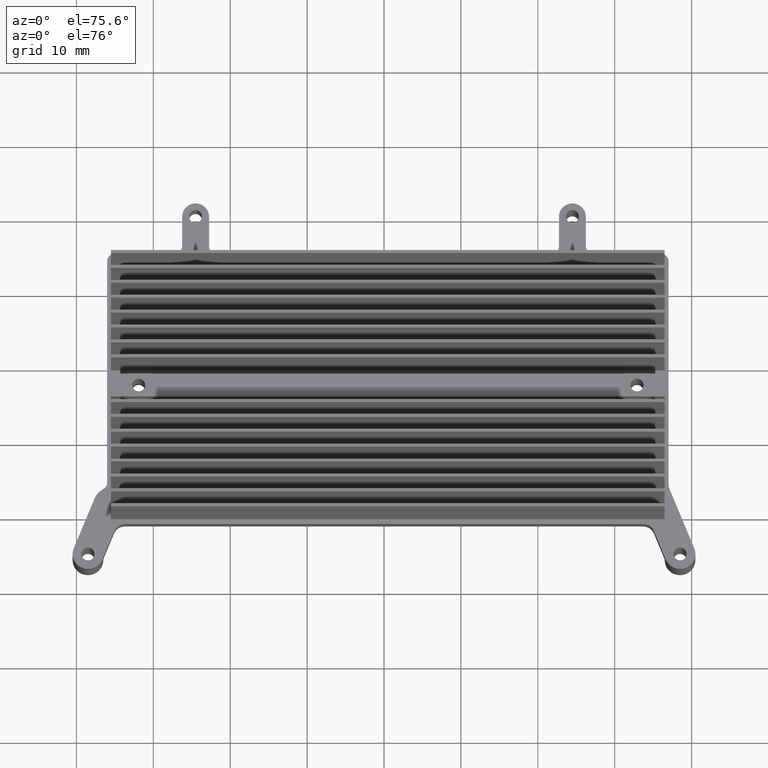
[diagram: clean part render]
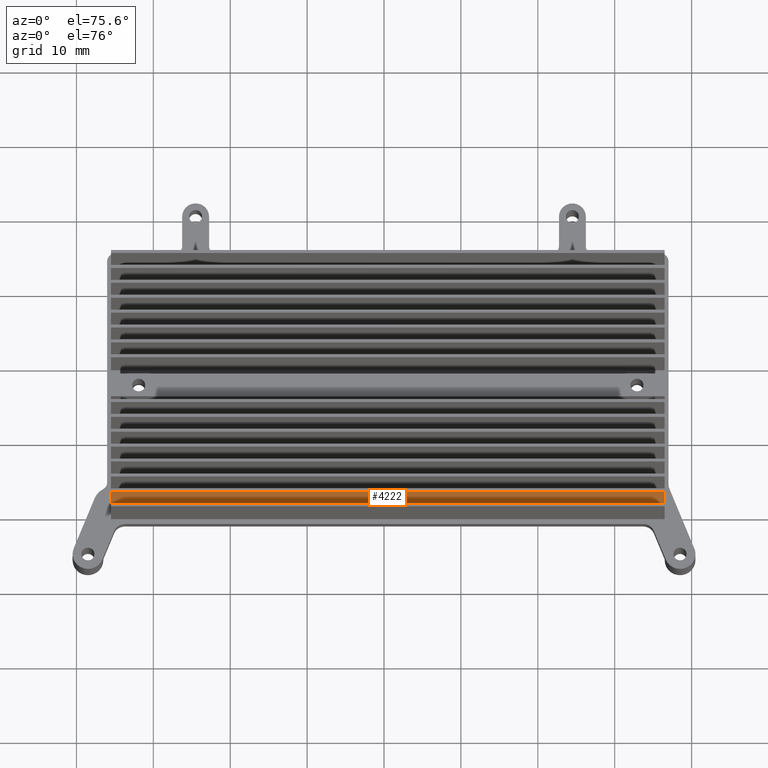
[diagram: same view with one face highlighted and labeled with its STEP entity id]
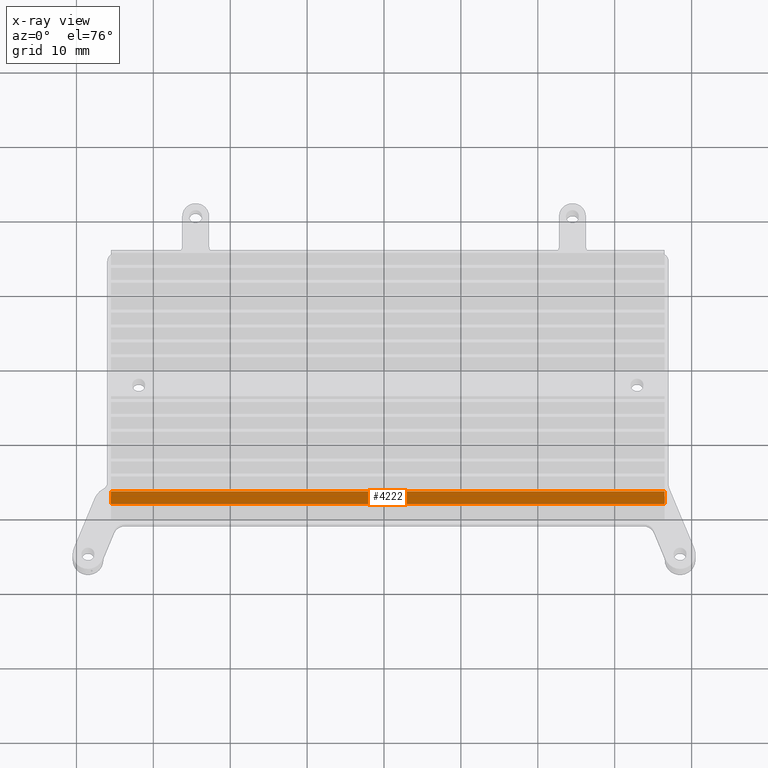
[diagram: x-ray of the same camera — body ghosted, the highlighted face saturated]
A machine part, auxiliary view. The second image highlights one B-rep face of the part: STEP entity #4222.
The next image is the same camera in x-ray: the body ghosted, the highlighted face saturated — about 0% of this face is hidden behind the body in this view.
In plain terms, the highlighted planar face has unit normal (0, 0.9986, -0.0535).
Its self-contained STEP definition (entity closure, byte-faithful):
#486 = CARTESIAN_POINT ( 'NONE',  ( 36.49940000000000140, -19.11228009753999757, -6.100000000000000533 ) ) ;
#529 = CARTESIAN_POINT ( 'NONE',  ( -35.49940000000000140, -18.81228009754000041, -0.5000000000000000000 ) ) ;
#574 = DIRECTION ( 'NONE',  ( 0.0000000000000000000, -0.05349472137160939805, -0.9985681322700888929 ) ) ;
#699 = EDGE_CURVE ( 'NONE', #2559, #4253, #3646, .T. ) ;
#867 = CARTESIAN_POINT ( 'NONE',  ( 1.000599999999999934, -18.81228009754000041, -0.5000000000000000000 ) ) ;
#1299 = ORIENTED_EDGE ( 'NONE', *, *, #3726, .F. ) ;
#1368 = CARTESIAN_POINT ( 'NONE',  ( -35.49940000000000140, -19.11228009753999757, -6.100000000000000533 ) ) ;
#1468 = DIRECTION ( 'NONE',  ( -1.000000000000000000, 0.0000000000000000000, 0.0000000000000000000 ) ) ;
#1537 = VECTOR ( 'NONE', #3736, 1000.000000000000000 ) ;
#1548 = LINE ( 'NONE', #529, #4133 ) ;
#2242 = DIRECTION ( 'NONE',  ( 0.0000000000000000000, 0.05349472137160939805, 0.9985681322700888929 ) ) ;
#2288 = LINE ( 'NONE', #2667, #3115 ) ;
#2316 = DIRECTION ( 'NONE',  ( -1.000000000000000000, 0.0000000000000000000, 0.0000000000000000000 ) ) ;
#2407 = FACE_OUTER_BOUND ( 'NONE', #3601, .T. ) ;
#2433 = ORIENTED_EDGE ( 'NONE', *, *, #2874, .F. ) ;
#2455 = VECTOR ( 'NONE', #1468, 1000.000000000000000 ) ;
#2511 = ORIENTED_EDGE ( 'NONE', *, *, #699, .F. ) ;
#2532 = CARTESIAN_POINT ( 'NONE',  ( 51.58500000000000085, -19.11228009753999757, -6.100000000000000533 ) ) ;
#2559 = VERTEX_POINT ( 'NONE', #486 ) ;
#2648 = EDGE_CURVE ( 'NONE', #4253, #3710, #1548, .T. ) ;
#2659 = PLANE ( 'NONE',  #2742 ) ;
#2667 = CARTESIAN_POINT ( 'NONE',  ( 36.49940000000000140, -18.81228009754000041, -0.5000000000000000000 ) ) ;
#2700 = DIRECTION ( 'NONE',  ( 0.0000000000000000000, 0.9985681322700890039, -0.05349472137160940499 ) ) ;
#2742 = AXIS2_PLACEMENT_3D ( 'NONE', #4444, #2700, #2316 ) ;
#2874 = EDGE_CURVE ( 'NONE', #3854, #2559, #2288, .T. ) ;
#3115 = VECTOR ( 'NONE', #574, 1000.000000000000114 ) ;
#3315 = ORIENTED_EDGE ( 'NONE', *, *, #2648, .F. ) ;
#3514 = CARTESIAN_POINT ( 'NONE',  ( 36.49940000000000140, -18.81228009754000041, -0.5000000000000000000 ) ) ;
#3601 = EDGE_LOOP ( 'NONE', ( #1299, #3315, #2511, #2433 ) ) ;
#3646 = LINE ( 'NONE', #2532, #2455 ) ;
#3710 = VERTEX_POINT ( 'NONE', #4329 ) ;
#3726 = EDGE_CURVE ( 'NONE', #3710, #3854, #3778, .T. ) ;
#3736 = DIRECTION ( 'NONE',  ( 1.000000000000000000, 0.0000000000000000000, 0.0000000000000000000 ) ) ;
#3778 = LINE ( 'NONE', #867, #1537 ) ;
#3854 = VERTEX_POINT ( 'NONE', #3514 ) ;
#4133 = VECTOR ( 'NONE', #2242, 1000.000000000000114 ) ;
#4222 = ADVANCED_FACE ( 'NONE', ( #2407 ), #2659, .F. ) ;
#4253 = VERTEX_POINT ( 'NONE', #1368 ) ;
#4329 = CARTESIAN_POINT ( 'NONE',  ( -35.49940000000000140, -18.81228009754000041, -0.5000000000000000000 ) ) ;
#4444 = CARTESIAN_POINT ( 'NONE',  ( 1.000599999999999934, -18.81228009754000041, -0.5000000000000000000 ) ) ;